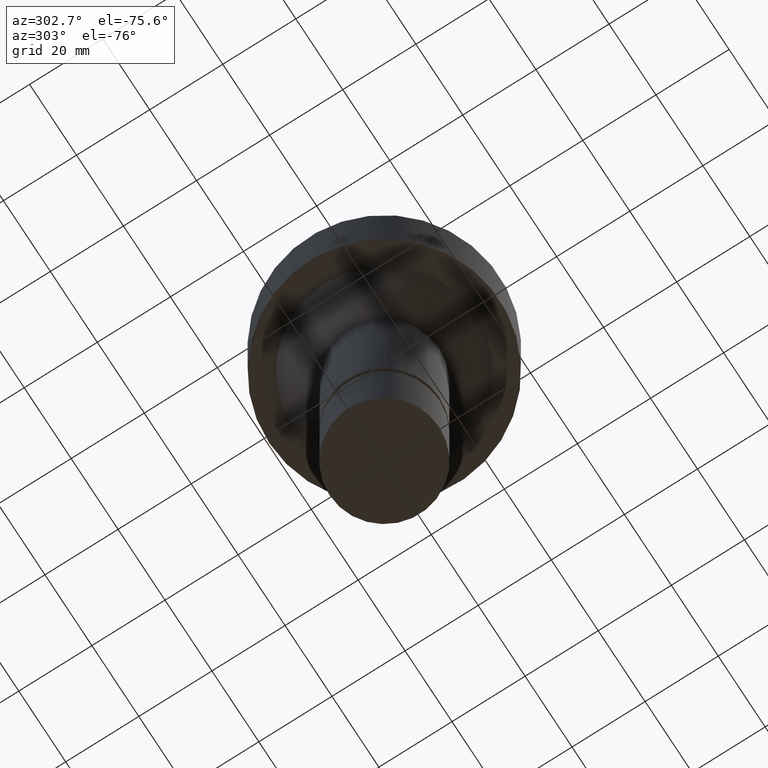
[diagram: clean part render]
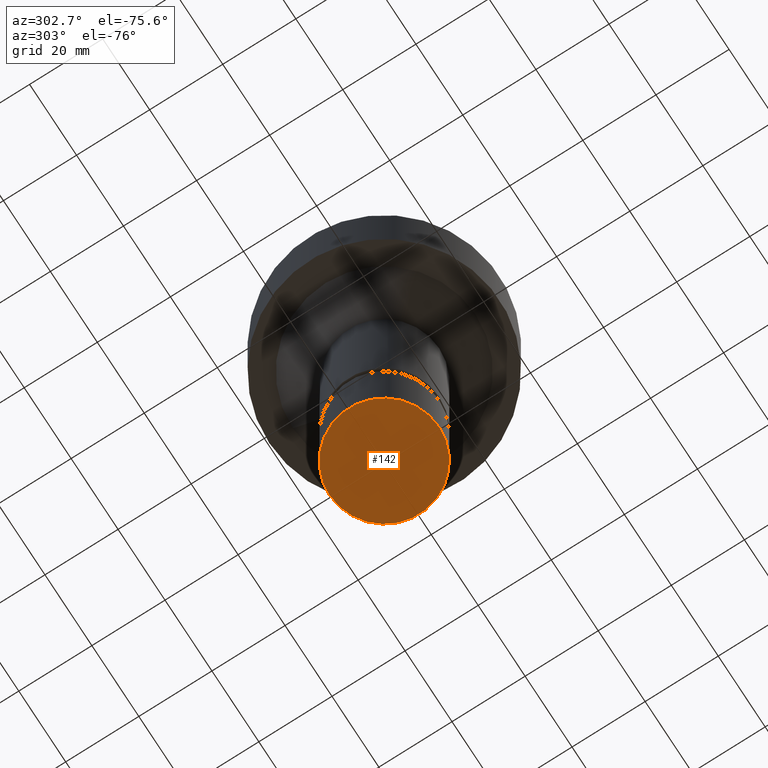
[diagram: same view with one face highlighted and labeled with its STEP entity id]
A machine part, auxiliary view. The second image highlights one B-rep face of the part: STEP entity #142.
In plain terms, the highlighted planar face has unit normal (0, 0, -1).
Its self-contained STEP definition (entity closure, byte-faithful):
#75=EDGE_CURVE('Unnamed[1]',#195,#195,#196,.T.);
#142=ADVANCED_FACE('Unnamed[1]',(#295),#296,.T.);
#195=VERTEX_POINT('',#354);
#196=CIRCLE('',#355,15.0);
#295=FACE_OUTER_BOUND('',#597,.T.);
#296=PLANE('',#598);
#354=CARTESIAN_POINT('',(6.4293956955236E-015,15.0,-105.0));
#355=AXIS2_PLACEMENT_3D('',#740,#741,#742);
#597=EDGE_LOOP('',(#842));
#598=AXIS2_PLACEMENT_3D('',#843,#844,#845);
#740=CARTESIAN_POINT('',(6.4293956955236E-015,1.28587913910472E-014,-105.0));
#741=DIRECTION('',(6.12323399573677E-017,1.22464679914735E-016,-1.0));
#742=DIRECTION('',(-1.23259516440783E-032,1.0,1.22464679914735E-016));
#842=ORIENTED_EDGE('',*,*,#75,.T.);
#843=CARTESIAN_POINT('',(6.4293956955236E-015,7.50000000000001,-105.0));
#844=DIRECTION('',(6.12323399573677E-017,1.22464679914735E-016,-1.0));
#845=DIRECTION('',(-1.23259516440783E-032,1.0,1.22464679914735E-016));